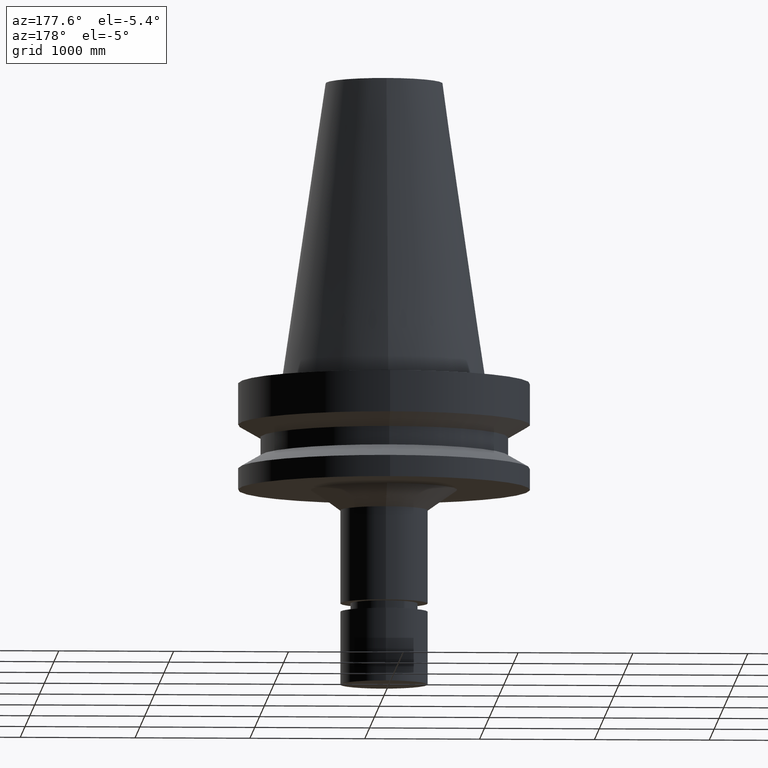
[diagram: clean part render]
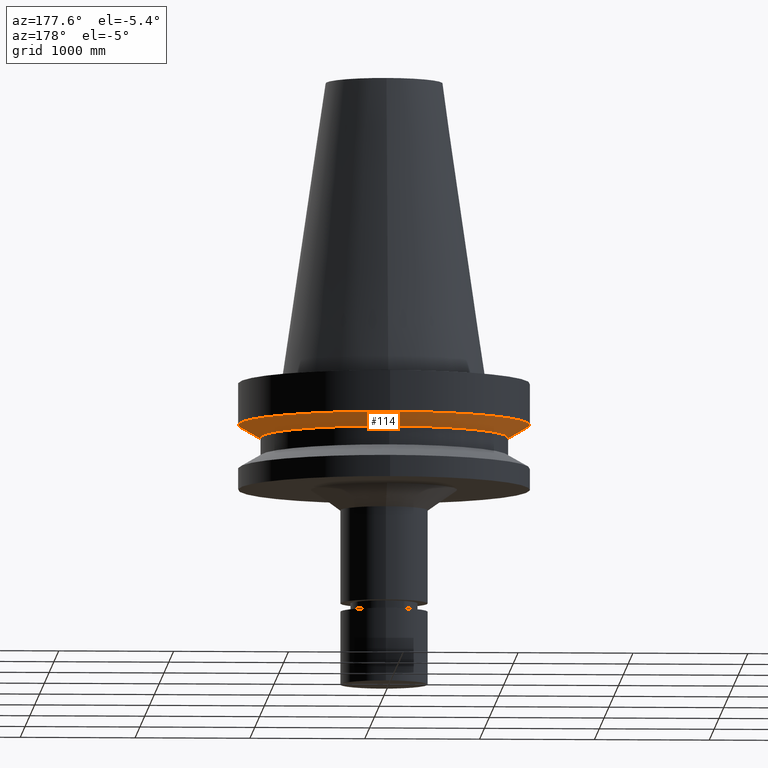
[diagram: same view with one face highlighted and labeled with its STEP entity id]
A machine part, auxiliary view. The second image highlights one B-rep face of the part: STEP entity #114.
In plain terms, the highlighted conical surface has half-angle 60 deg.
Its self-contained STEP definition (entity closure, byte-faithful):
#92=EDGE_CURVE('Unnamed[1]',#228,#228,#229,.T.);
#107=EDGE_CURVE('Unnamed[1]',#250,#250,#251,.T.);
#114=ADVANCED_FACE('Unnamed[1]',(#260,#261),#262,.T.);
#228=VERTEX_POINT('',#410);
#229=CIRCLE('',#411,42.5);
#250=VERTEX_POINT('',#437);
#251=CIRCLE('',#438,50.0);
#260=FACE_BOUND('',#450,.T.);
#261=FACE_BOUND('',#451,.T.);
#262=CONICAL_SURFACE('',#452,46.25,1.04719755108882);
#410=CARTESIAN_POINT('',(1.2264915470779E-015,42.5,-20.03012702));
#411=AXIS2_PLACEMENT_3D('',#612,#613,#614);
#437=CARTESIAN_POINT('',(9.61347737330674E-016,50.0,-15.7));
#438=AXIS2_PLACEMENT_3D('',#634,#635,#636);
#450=EDGE_LOOP('',(#644));
#451=EDGE_LOOP('',(#645));
#452=AXIS2_PLACEMENT_3D('',#646,#647,#648);
#612=CARTESIAN_POINT('',(1.2264915470779E-015,1.29933506625849E-014,-20.03012702));
#613=DIRECTION('',(-6.12323399573677E-017,1.40684069939023E-019,1.0));
#614=DIRECTION('',(-4.81853831597193E-033,1.0,-1.40684069939023E-019));
#634=CARTESIAN_POINT('',(9.61347737330675E-016,1.29939598424774E-014,-15.7));
#635=DIRECTION('',(-6.12323399573677E-017,1.40684069939013E-019,1.0));
#636=DIRECTION('',(-4.81853831597193E-033,1.0,-1.40684069939013E-019));
#644=ORIENTED_EDGE('',*,*,#107,.F.);
#645=ORIENTED_EDGE('',*,*,#92,.T.);
#646=CARTESIAN_POINT('',(1.09391964220429E-015,1.29936552525312E-014,-17.86506351));
#647=DIRECTION('',(-6.12323399573677E-017,1.40684069939026E-019,1.0));
#648=DIRECTION('',(-4.81853831597193E-033,1.0,-1.40684069939026E-019));